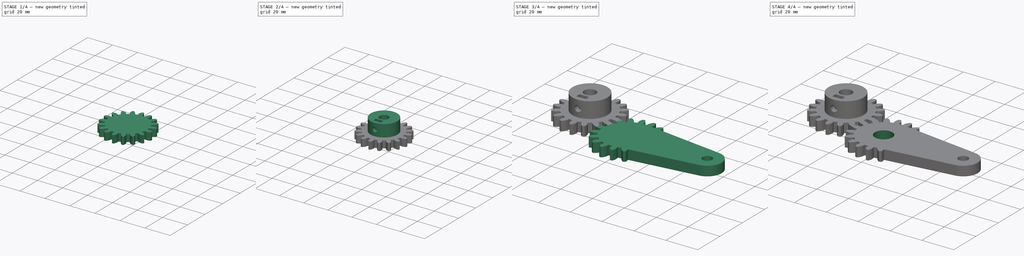
[diagram: build sequence overview — one tinted view per stage of 4, left to right]
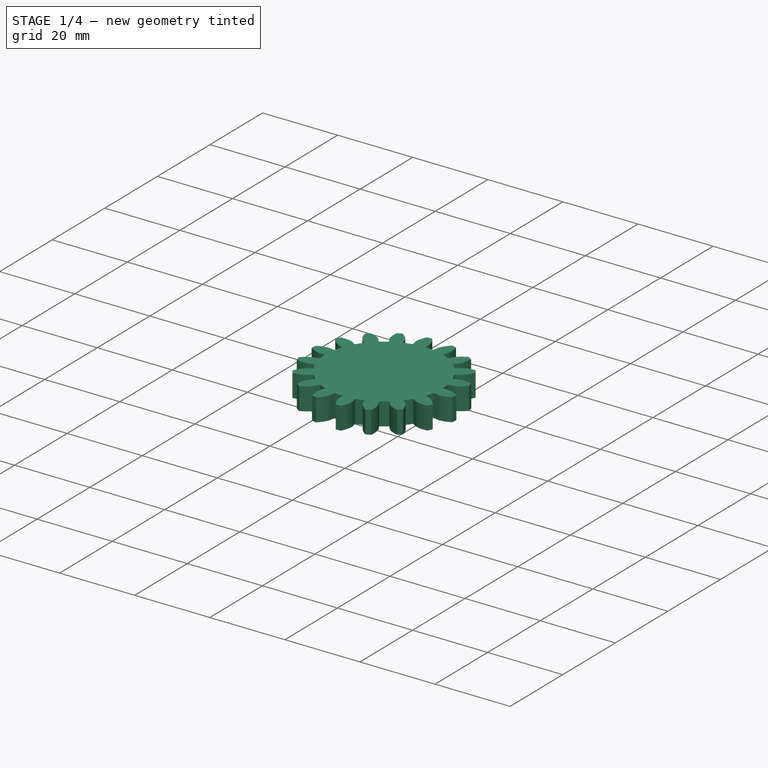
[diagram: stage 1 of 4 — iso view after this stage's code; geometry added in this stage tinted green]
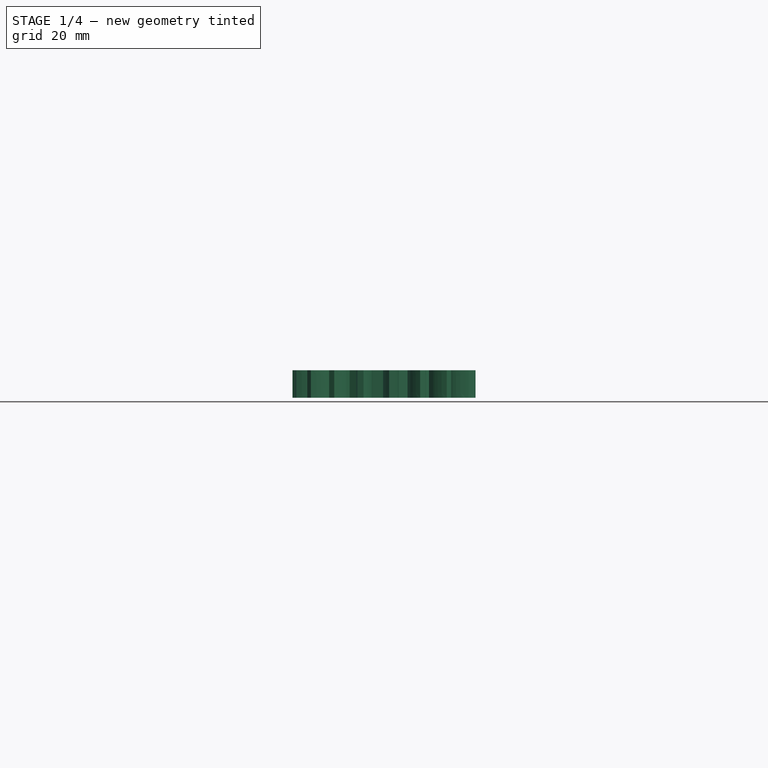
[diagram: stage 1 of 4 — front view after this stage's code; geometry added in this stage tinted green]
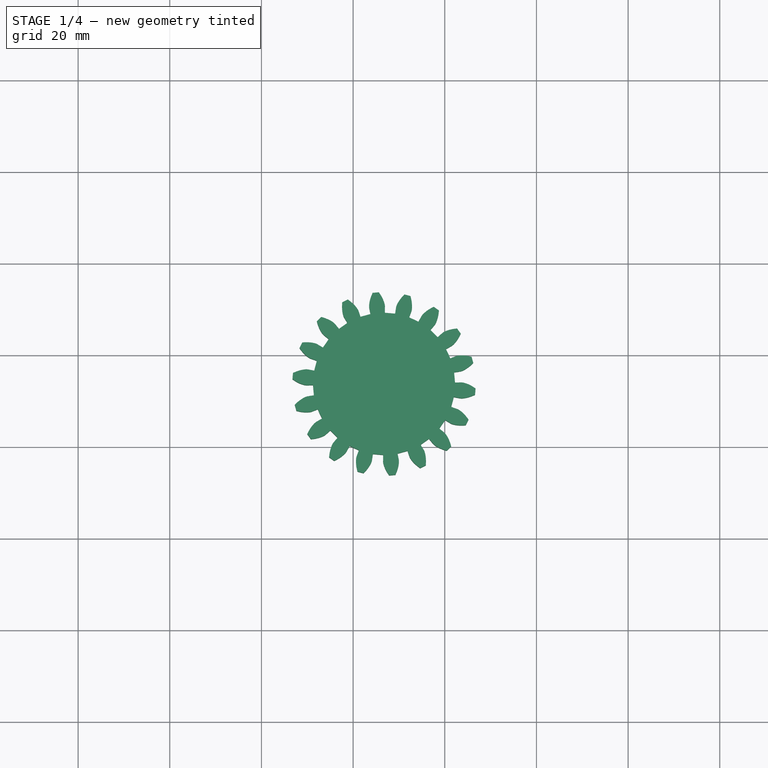
[diagram: stage 1 of 4 — top view after this stage's code; geometry added in this stage tinted green]
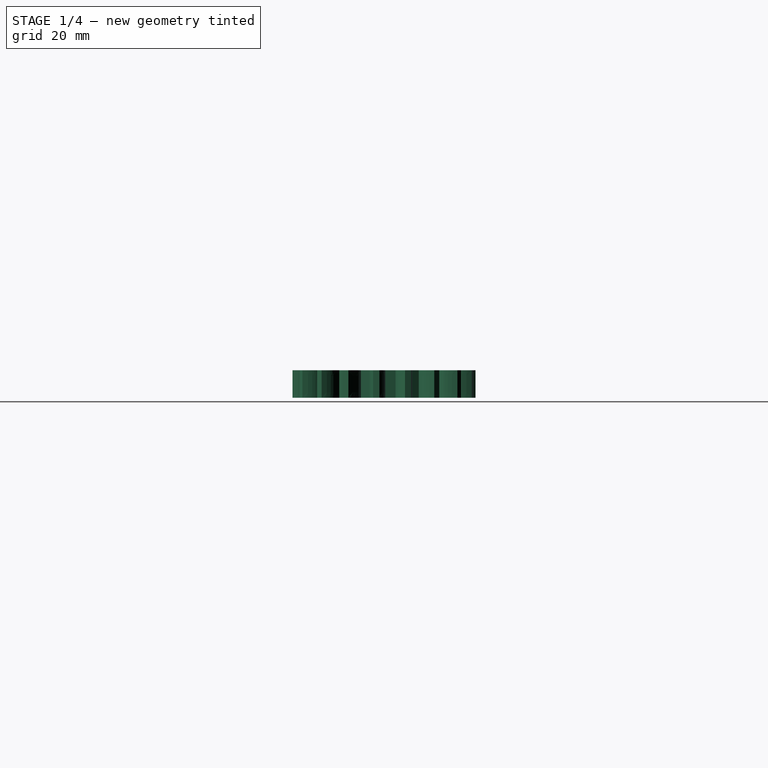
[diagram: stage 1 of 4 — right view after this stage's code; geometry added in this stage tinted green]
FCSTD DOCUMENT  (FreeCAD 2023.131R26244 +5365 (Git))
Label: manovella tergicrcistallo
License: All rights reserved
LicenseURL: http://en.wikipedia.org/wiki/All_rights_reserved
objects: Sketcher::SketchObject×8, PartDesign::Pad×5, PartDesign::Body×4, PartDesign::Chamfer×3, PartDesign::Pocket×3, Part::FeaturePython×1, PartDesign::FeatureBase×1, Part::Feature×1, PartDesign::FeaturePython×1
note: 59 computed .brp shape members not serialized (recipe doc carries the construction recipe); baked Part::Feature solids carry a one-line shape summary decoded from their .brp

FEATURE [PartDesign::Body] Body001  label="manovella"
  AutoGroupSolids = false
  BaseFeature = -> InvoluteGear
  ClaimAllChildren = false
  ExportMode = 0
  FixShape = 1
  Group = -> [BaseFeature,Sketch001,Pad001,Sketch002,Pocket,Chamfer]
  InvalidShape = false
  Origin = -> Origin001
  Tip = -> Chamfer
  TreeRank = 32
  ValidateShape = false
  _ExportChildren = -> [BaseFeature,Pad001,Pocket,Chamfer]
  _GroupVersion = 1
FEATURE [Sketcher::SketchObject] Sketch003
  ArcFitTolerance = 1e-06
  AttachmentOffset = pos=(0,0,-5) rot=(0,0,1;0rad)
  AttachmentSupport = -> [XY_Plane002]
  ExternalBSplineMaxDegree = 5
  ExternalBSplineTolerance = 0.0001
  FixShape = 1
  FullyConstrained = true
  InternalTolerance = 1e-06
  InvalidShape = false
  MakeInternals = false
  MapMode = 5
  Placement = pos=(0,0,-5) rot=(0,0,1;0rad)
  Support = -> [XY_Plane002]
  TreeRank = 50
  ValidateShape = false
  sketch-geometry (10):
    g0: Circle CenterX=0 CenterY=0 CenterZ=0 NormalX=0 NormalY=0 NormalZ=1 AngleXU=0 Radius=11
    g1: ArcOfCircle CenterX=0 CenterY=0 CenterZ=0 NormalX=0 NormalY=0 NormalZ=1 AngleXU=0 Radius=16 StartAngle=4.23626 EndAngle=7.54471
    g2: ArcOfCircle CenterX=-33.2597 CenterY=13.7766 CenterZ=0 NormalX=0 NormalY=0 NormalZ=1 AngleXU=0 Radius=13 StartAngle=1.26153 EndAngle=4.23626
    g3: LineSegment StartX=-7.33348 StartY=-14.2204 StartZ=0 EndX=-39.2181 EndY=2.22252 EndZ=0
    g4: LineSegment StartX=-29.303 StartY=26.1598 StartZ=0 EndX=4.8698 EndY=15.2409 EndZ=0
    g5: ArcOfCircle CenterX=-33.2597 CenterY=13.7766 CenterZ=0 NormalX=0 NormalY=0 NormalZ=1 AngleXU=0 Radius=6 StartAngle=1.83536 EndAngle=3.66243
    g6: LineSegment [constr] StartX=0 StartY=0 StartZ=0 EndX=-33.2597 EndY=13.7766 EndZ=0
    g7: LineSegment StartX=-34.8286 StartY=19.5678 StartZ=0 EndX=-28.0552 EndY=16.7622 EndZ=0
    g8: LineSegment StartX=-38.4641 StartY=10.791 StartZ=0 EndX=-31.6907 EndY=7.98537 EndZ=0
    g9: ArcOfCircle CenterX=-33.2597 CenterY=13.7766 CenterZ=0 NormalX=0 NormalY=0 NormalZ=1 AngleXU=0 Radius=6 StartAngle=4.97695 EndAngle=6.80402
  constraints (25):
    c: Coincident(g0,g-1)
    c: Coincident(g1,g0)
    c: Tangent(g1,g4) = 1.5708
    c: Tangent(g1,g3) = 1.5708
    c: Tangent(g2,g3) = 1.5708
    c: Tangent(g2,g4) = 1.5708
    c: Diameter(g0) = 22
    c: Radius(g1) = 16
    c: Coincident(g5,g2)
    c: Diameter(g5) = 12
    c: Radius(g2) = 13
    c: Distance(g0,g2) = 36
    c: Coincident(g6,g0)
    c: Coincident(g6,g2)
    c: Angle(g6) = 2.74889
    c: Parallel(g7,g8)
    c: Parallel(g8,g6)
    c: Symmetric(g7,g8,g6)
    c: Coincident(g9,g7)
    c: Coincident(g5,g7)
    c: Equal(g5,g9)
    c: Coincident(g5,g8)
    c: PointOnObject(g9,g8)
    c: Coincident(g5,g9)
    c: Distance(g8,g7) = 9.5
FEATURE [PartDesign::Pad] Pad002
  AddSubType = 0
  AlongSketchNormal = false
  AutoTaperInnerAngle = true
  CheckUpToFaceLimits = true
  ClaimChildren = false
  Direction = (0,0,1)
  Fit = 0
  FitJoin = 0
  FixShape = 1
  InnerFit = 0
  InnerFitJoin = 0
  InvalidShape = false
  Length = 3
  Length2 = 100
  Linearize = true
  NewSolid = false
  Profile = -> Sketch003
  Suppress = false
  TaperInnerAngle = 0
  TaperInnerAngleRev = 0
  TreeRank = 51
  Type = 0
  ValidateShape = false
  _ProfileBasedVersion = 1
FEATURE [Sketcher::SketchObject] Sketch004
  ArcFitTolerance = 1e-06
  AttachmentSupport = -> [Pad002]
  ExternalBSplineMaxDegree = 5
  ExternalBSplineTolerance = 0.0001
  ExternalGeometry = -> [Pad002]
  FixShape = 1
  FullyConstrained = true
  InternalTolerance = 1e-06
  InvalidShape = false
  MakeInternals = false
  MapMode = 5
  Placement = pos=(0,0,-5) rot=(1,0,0;3.14159rad)
  Support = -> [Pad002]
  TreeRank = 52
  ValidateShape = false
  sketch-geometry (8):
    g0: ArcOfCircle CenterX=0 CenterY=0 CenterZ=0 NormalX=0 NormalY=0 NormalZ=1 AngleXU=0 Radius=11 StartAngle=0.182835 EndAngle=0.576931
    g1: ArcOfCircle CenterX=0 CenterY=0 CenterZ=0 NormalX=0 NormalY=0 NormalZ=1 AngleXU=0 Radius=16 StartAngle=0.125328 EndAngle=0.384397
    g2: ArcOfCircle CenterX=0 CenterY=0 CenterZ=0 NormalX=0 NormalY=0 NormalZ=1 AngleXU=0 Radius=11 StartAngle=5.70625 EndAngle=6.10035
    g3: ArcOfCircle CenterX=0 CenterY=0 CenterZ=0 NormalX=0 NormalY=0 NormalZ=1 AngleXU=0 Radius=16 StartAngle=5.89879 EndAngle=6.15786
    g4: LineSegment StartX=9.21954 StartY=6 StartZ=0 EndX=14.8324 EndY=6 EndZ=0
    g5: LineSegment StartX=10.8167 StartY=2 StartZ=0 EndX=15.8745 EndY=2 EndZ=0
    g6: LineSegment StartX=10.8167 StartY=-2 StartZ=0 EndX=15.8745 EndY=-2 EndZ=0
    g7: LineSegment StartX=9.21954 StartY=-6 StartZ=0 EndX=14.8324 EndY=-6 EndZ=0
  constraints (24):
    c: PointOnObject(g0,g-3)
    c: PointOnObject(g1,g-4)
    c: PointOnObject(g2,g-3)
    c: PointOnObject(g3,g-4)
    c: Coincident(g4,g0)
    c: Coincident(g4,g1)
    c: Coincident(g5,g0)
    c: Coincident(g5,g1)
    c: Coincident(g6,g2)
    c: Coincident(g6,g3)
    c: Coincident(g7,g2)
    c: Coincident(g7,g3)
    c: Vertical(g1,g3)
    c: Horizontal(g5)
    c: Horizontal(g4)
    c: Horizontal(g6)
    c: Horizontal(g7)
    c: Vertical(g3,g1)
    c: DistanceY(g1) = 6
    c: DistanceY(g1) = 2
    c: Coincident(g1,g0)
    c: Coincident(g0,g-4)
    c: Coincident(g3,g0)
    c: Coincident(g2,g0)
FEATURE [PartDesign::Pad] Pad003
  AddSubType = 0
  AlongSketchNormal = false
  AutoTaperInnerAngle = true
  BaseFeature = -> Pad002
  CheckUpToFaceLimits = true
  ClaimChildren = false
  Direction = (0,0,-1)
  Fit = 0
  FitJoin = 0
  FixShape = 1
  InnerFit = 0
  InnerFitJoin = 0
  InvalidShape = false
  Length = 4
  Length2 = 100
  Linearize = true
  NewSolid = false
  Profile = -> Sketch004
  Suppress = false
  TaperInnerAngle = 0
  TaperInnerAngleRev = 0
  TreeRank = 53
  Type = 0
  ValidateShape = false
  _ProfileBasedVersion = 1
FEATURE [PartDesign::Chamfer] Chamfer002
  AddSubType = 0
  Angle = 45
  Base = -> Pad003 [Edge39,Edge31]
  BaseFeature = -> Pad003
  ChamferType = 0
  FixShape = 1
  FlipDirection = false
  InvalidShape = false
  NewSolid = false
  Size = 2
  Size2 = 1
  SupportTransform = false
  Suppress = false
  TreeRank = 54
  ValidateShape = false
FEATURE [PartDesign::Body] Body002  label="collare"
  AutoGroupSolids = false
  ClaimAllChildren = false
  ExportMode = 0
  FixShape = 1
  Group = -> [Sketch003,Pad002,Sketch004,Pad003,Chamfer002]
  InvalidShape = false
  Origin = -> Origin002
  Placement = pos=(0,0,-4.75) rot=(0,0,1;0rad)
  Tip = -> Chamfer002
  TreeRank = 49
  ValidateShape = false
  _ExportChildren = -> [Pad002,Pad003,Chamfer002]
  _GroupVersion = 1
FEATURE [Part::Feature] Part__Feature  label="POT10K v2"
  FixShape = 1
  InvalidShape = false
  Placement = pos=(-30.5,12.5,-19.5) rot=(0,0,1;0rad)
  TreeRank = 55
  ValidateShape = false
  shape: bbox 25.88 x 17.76 x 24.21 mm, 189 faces (baked)
FEATURE [PartDesign::FeaturePython] InvoluteGear001  # WARN: FeaturePython — macro-defined, semantics opaque (R4)
  AttacherType = Attacher::AttachEngine3D
  AttachmentOffset = pos=(0,0,2) rot=(0,0,1;0rad)
  AttachmentSupport = -> [Chamfer002]
  FixShape = 1
  InvalidShape = false
  MapMode = 11
  NewSolid = false
  Placement = pos=(-33.2597,13.7766,0) rot=(0,0,1;3.40616rad)
  Support = -> [Chamfer002]
  Suppress = false
  TreeRank = 68
  ValidateShape = false
  angular_backlash = 0
  backlash = 0
  beta = 0
  clearance = 0.25
  da = 40
  df = 31
  double_helix = false
  dw = 36
  head = 0
  head_fillet = 0
  height = 6
  module = 2
  numpoints = 6
  pressure_angle = 20
  properties_from_tool = false
  reversed_backlash = false
  root_fillet = 0
  shift = 0
  simple = false
  teeth = 18
  transverse_pitch = 6.28319
  traverse_module = 2
  undercut = false
  version = 0.0.4
  expr: angular_backlash = backlash / dw * 360° / pi
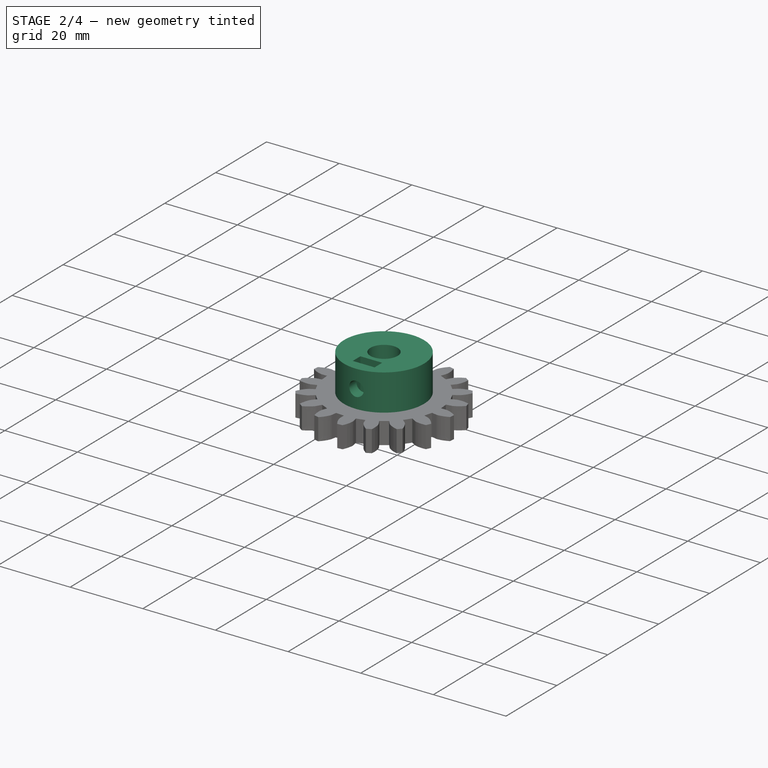
[diagram: stage 2 of 4 — iso view after this stage's code; geometry added in this stage tinted green]
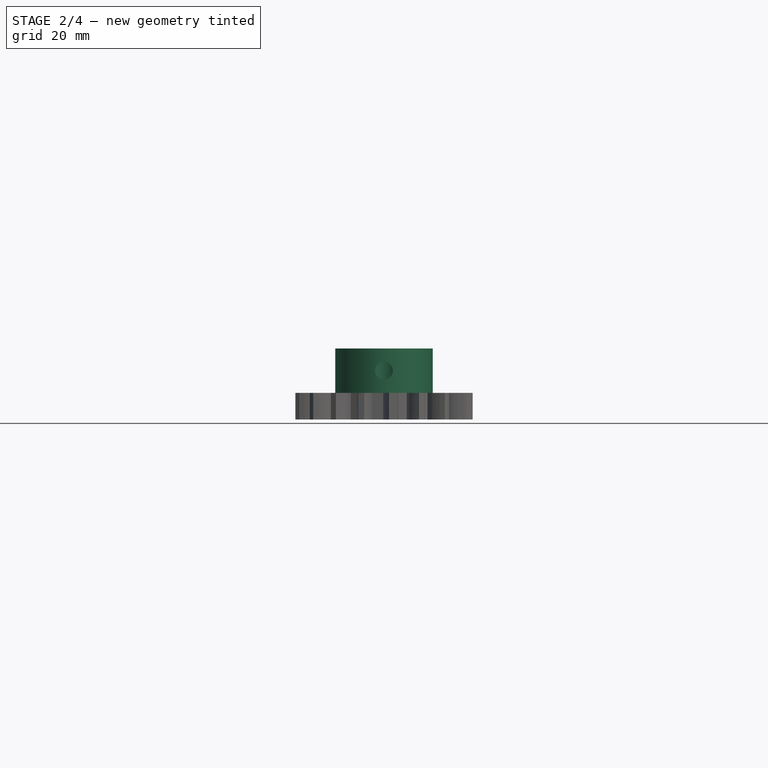
[diagram: stage 2 of 4 — front view after this stage's code; geometry added in this stage tinted green]
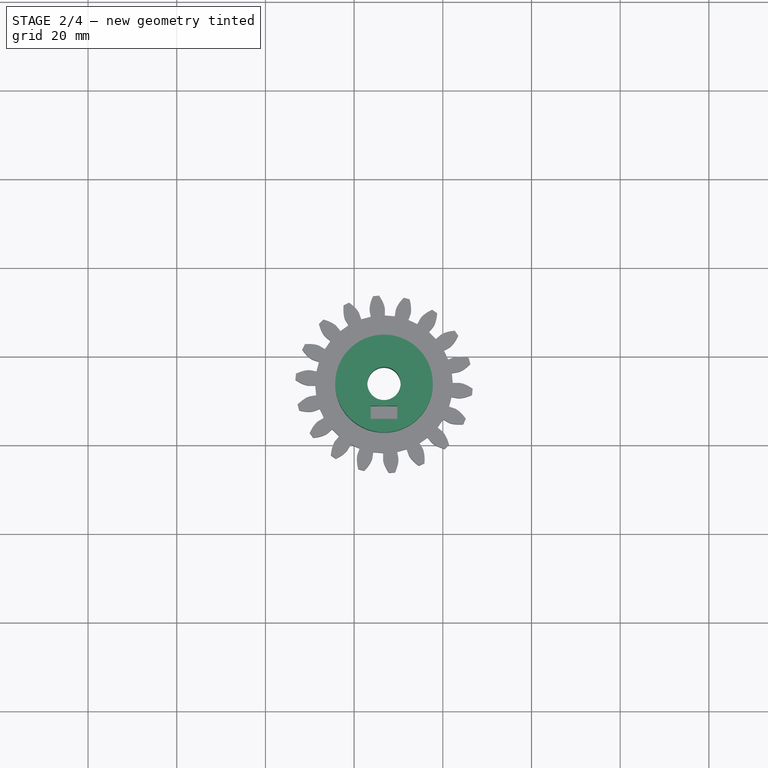
[diagram: stage 2 of 4 — top view after this stage's code; geometry added in this stage tinted green]
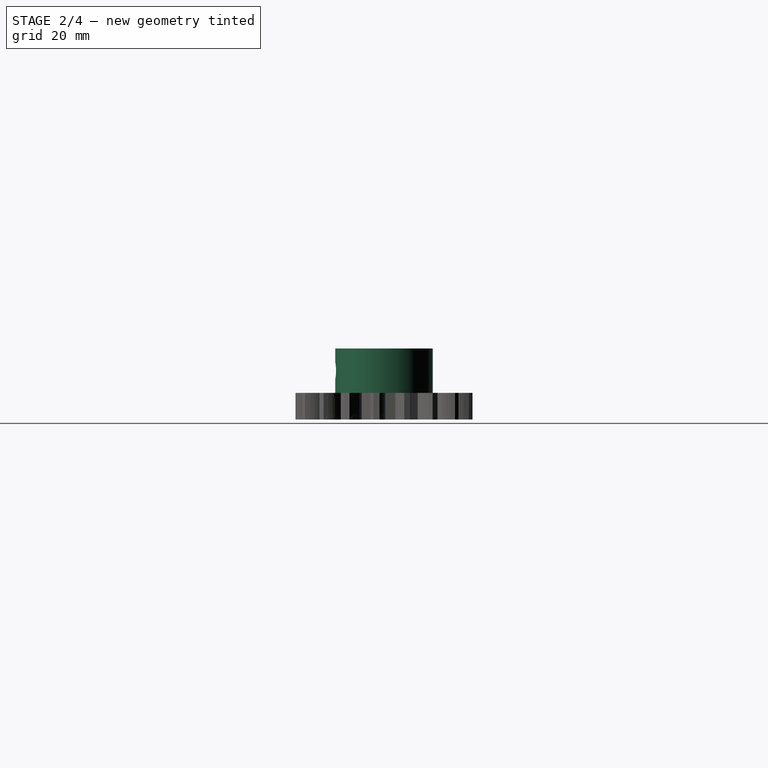
[diagram: stage 2 of 4 — right view after this stage's code; geometry added in this stage tinted green]
FEATURE [Sketcher::SketchObject] Sketch005
  ArcFitTolerance = 1e-06
  AttachmentSupport = -> [InvoluteGear001]
  ExternalBSplineMaxDegree = 5
  ExternalBSplineTolerance = 0.0001
  FixShape = 1
  FullyConstrained = true
  InternalTolerance = 1e-06
  InvalidShape = false
  MakeInternals = false
  MapMode = 5
  Placement = pos=(-33.2597,13.7766,0) rot=(-0.131897,0.991263,0;3.14159rad)
  Support = -> [InvoluteGear001]
  TreeRank = 69
  ValidateShape = false
  sketch-geometry (1):
    g0: Circle CenterX=0 CenterY=0 CenterZ=0 NormalX=0 NormalY=0 NormalZ=1 AngleXU=0 Radius=3.75
  constraints (2):
    c: Coincident(g0,g-1)
    c: Diameter(g0) = 7.5
FEATURE [PartDesign::Pocket] Pocket001
  AddSubType = 1
  AutoTaperInnerAngle = true
  BaseFeature = -> InvoluteGear001
  CheckUpToFaceLimits = true
  ClaimChildren = false
  Fit = 0
  FitJoin = 0
  FixShape = 1
  InnerFit = 0
  InnerFitJoin = 0
  InvalidShape = false
  Length = 5
  Length2 = 100
  Linearize = true
  NewSolid = false
  Profile = -> Sketch005
  Suppress = false
  TaperInnerAngle = 0
  TaperInnerAngleRev = 0
  TreeRank = 70
  Type = 1
  ValidateShape = false
  _ProfileBasedVersion = 1
  _Version = 1
FEATURE [Sketcher::SketchObject] Sketch006
  ArcFitTolerance = 1e-06
  AttachmentSupport = -> [Pocket001]
  ExternalBSplineMaxDegree = 5
  ExternalBSplineTolerance = 0.0001
  ExternalGeometry = -> [Pocket001]
  FixShape = 1
  FullyConstrained = true
  InternalTolerance = 1e-06
  InvalidShape = false
  MakeInternals = false
  MapMode = 5
  Placement = pos=(0,0,6) rot=(0,0,1;0rad)
  Support = -> [Pocket001]
  TreeRank = 71
  ValidateShape = false
  sketch-geometry (7):
    g0: Circle CenterX=-33.2597 CenterY=13.7766 CenterZ=0 NormalX=0 NormalY=0 NormalZ=1 AngleXU=0 Radius=11
    g1: Circle CenterX=-33.2597 CenterY=13.7766 CenterZ=0 NormalX=0 NormalY=0 NormalZ=1 AngleXU=0 Radius=3.75
    g2: LineSegment StartX=-36.2597 StartY=8.7766 StartZ=0 EndX=-30.2597 EndY=8.7766 EndZ=0
    g3: LineSegment StartX=-30.2597 StartY=8.7766 StartZ=0 EndX=-30.2597 EndY=5.7766 EndZ=0
    g4: LineSegment StartX=-30.2597 StartY=5.7766 StartZ=0 EndX=-36.2597 EndY=5.7766 EndZ=0
    g5: LineSegment StartX=-36.2597 StartY=5.7766 StartZ=0 EndX=-36.2597 EndY=8.7766 EndZ=0
    g6: LineSegment [constr] StartX=-33.2597 StartY=13.7766 StartZ=0 EndX=-33.2597 EndY=8.7766 EndZ=0
  constraints (18):
    c: Coincident(g1,g0)
    c: Diameter(g0) = 22
    c: Equal(g1,g-3)
    c: Coincident(g0,g-3)
    c: Coincident(g2,g3)
    c: Coincident(g3,g4)
    c: Coincident(g4,g5)
    c: Coincident(g5,g2)
    c: Horizontal(g2)
    c: Horizontal(g4)
    c: Vertical(g3)
    c: Vertical(g5)
    c: DistanceY(g5,g5) = 3
    c: DistanceX(g4,g4) = 6
    c: Coincident(g6,g0)
    c: PointOnObject(g6,g2)
    c: Symmetric(g2,g2,g6)
    c: DistanceY(g6,g6) = 5
FEATURE [PartDesign::Pad] Pad004
  AddSubType = 0
  AlongSketchNormal = false
  AutoTaperInnerAngle = true
  BaseFeature = -> Pocket001
  CheckUpToFaceLimits = true
  ClaimChildren = false
  Direction = (0,0,1)
  Fit = 0
  FitJoin = 0
  FixShape = 1
  InnerFit = 0
  InnerFitJoin = 0
  InvalidShape = false
  Length = 10
  Length2 = 100
  Linearize = true
  NewSolid = false
  Profile = -> Sketch006
  Suppress = false
  TaperInnerAngle = 0
  TaperInnerAngleRev = 0
  TreeRank = 72
  Type = 0
  ValidateShape = false
  _ProfileBasedVersion = 1
FEATURE [Sketcher::SketchObject] Sketch007
  ArcFitTolerance = 1e-06
  AttachmentSupport = -> [Pad004]
  ExternalBSplineMaxDegree = 5
  ExternalBSplineTolerance = 0.0001
  ExternalGeometry = -> [Pad004]
  FixShape = 1
  FullyConstrained = true
  InternalTolerance = 1e-06
  InvalidShape = false
  MakeInternals = false
  MapMode = 5
  Placement = pos=(0,8.7766,0) rot=(1,0,0;1.5708rad)
  Support = -> [Pad004]
  TreeRank = 73
  ValidateShape = false
  sketch-geometry (1):
    g0: Circle CenterX=-33.2597 CenterY=11 CenterZ=0 NormalX=0 NormalY=0 NormalZ=1 AngleXU=0 Radius=2
  constraints (2):
    c: Diameter(g0) = 4
    c: Symmetric(g-3,g-4,g0)
FEATURE [PartDesign::Pocket] Pocket002
  AddSubType = 1
  AutoTaperInnerAngle = true
  BaseFeature = -> Pad004
  CheckUpToFaceLimits = true
  ClaimChildren = false
  Fit = 0
  FitJoin = 0
  FixShape = 1
  InnerFit = 0
  InnerFitJoin = 0
  InvalidShape = false
  Length = 12
  Length2 = 100
  Linearize = true
  Midplane = true
  NewSolid = false
  Profile = -> Sketch007
  Suppress = false
  TaperInnerAngle = 0
  TaperInnerAngleRev = 0
  TreeRank = 74
  Type = 0
  ValidateShape = false
  _ProfileBasedVersion = 1
  _Version = 1
FEATURE [PartDesign::Body] Body003  label="ingranaggio"
  AutoGroupSolids = false
  ClaimAllChildren = false
  ExportMode = 0
  FixShape = 1
  Group = -> [InvoluteGear001,Sketch005,Pocket001,Sketch006,Pad004,Sketch007,Pocket002]
  InvalidShape = false
  Origin = -> Origin003
  Placement = pos=(-3.42071,-6.23831,-1.8e-15) rot=(0,0,1;6.07375rad)
  Tip = -> Pocket002
  TreeRank = 67
  ValidateShape = false
  _ExportChildren = -> [InvoluteGear001,Pocket001,Pad004,Pocket002]
  _GroupVersion = 1
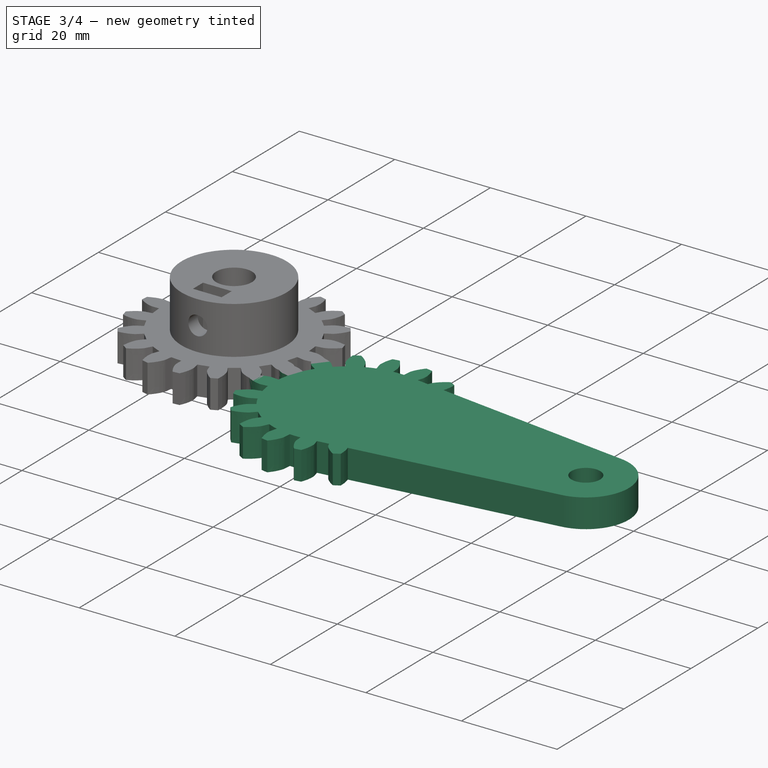
[diagram: stage 3 of 4 — iso view after this stage's code; geometry added in this stage tinted green]
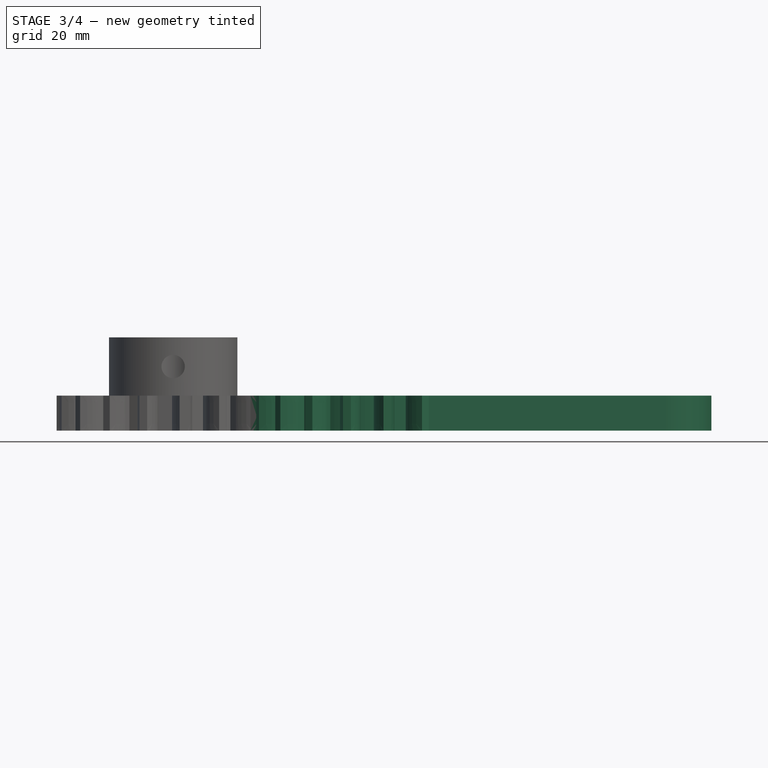
[diagram: stage 3 of 4 — front view after this stage's code; geometry added in this stage tinted green]
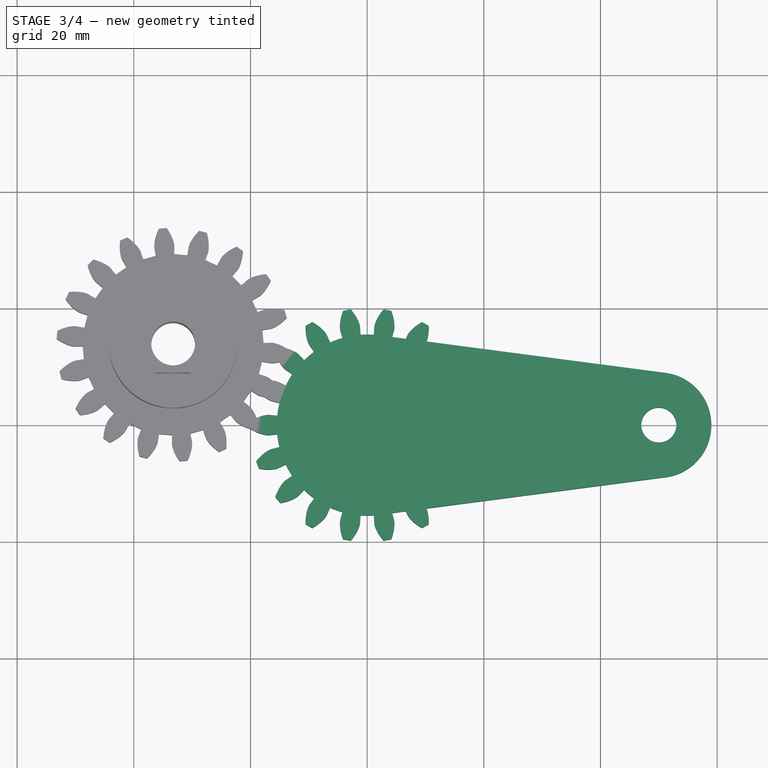
[diagram: stage 3 of 4 — top view after this stage's code; geometry added in this stage tinted green]
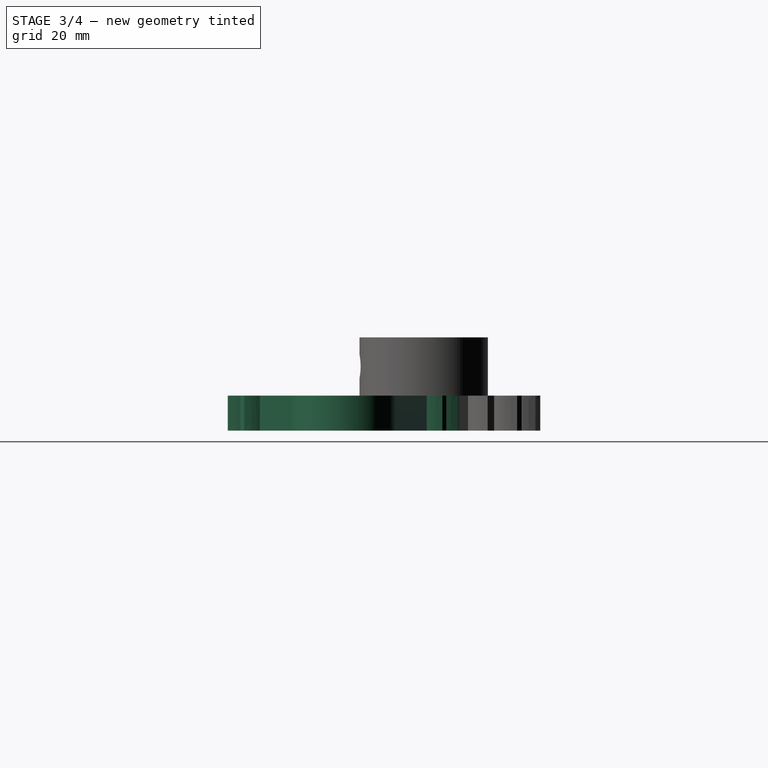
[diagram: stage 3 of 4 — right view after this stage's code; geometry added in this stage tinted green]
FEATURE [PartDesign::Body] Body
  AutoGroupSolids = false
  ClaimAllChildren = false
  ExportMode = 0
  FixShape = 1
  Group = -> [Sketch,Pad,Chamfer001]
  InvalidShape = false
  Origin = -> Origin
  Tip = -> Chamfer001
  TreeRank = 13
  ValidateShape = false
  _ExportChildren = -> [Pad,Chamfer001]
  _GroupVersion = 1
FEATURE [Part::FeaturePython] InvoluteGear  # WARN: FeaturePython — macro-defined, semantics opaque (R4)
  AttacherType = Attacher::AttachEngine3D
  FixShape = 1
  InvalidShape = false
  TreeRank = 14
  ValidateShape = false
  angular_backlash = 0
  backlash = 0
  beta = 0
  clearance = 0.25
  da = 40
  df = 31
  double_helix = true
  dw = 36
  head = 0
  head_fillet = 0
  height = 6
  module = 2
  numpoints = 6
  pressure_angle = 20
  properties_from_tool = false
  reversed_backlash = false
  root_fillet = 0
  shift = 0
  simple = false
  teeth = 18
  transverse_pitch = 6.28319
  traverse_module = 2
  undercut = false
  version = 0.0.4
  expr: angular_backlash = backlash / dw * 360° / pi
FEATURE [PartDesign::FeatureBase] BaseFeature
  BaseFeature = -> InvoluteGear
  FixShape = 1
  InvalidShape = false
  NewSolid = false
  Suppress = false
  TreeRank = 29
  ValidateShape = false
FEATURE [Sketcher::SketchObject] Sketch001
  ArcFitTolerance = 1e-06
  AttachmentSupport = -> [BaseFeature]
  ExternalBSplineMaxDegree = 5
  ExternalBSplineTolerance = 0.0001
  ExternalGeometry = -> [BaseFeature]
  FixShape = 1
  FullyConstrained = true
  InternalTolerance = 1e-06
  InvalidShape = false
  MakeInternals = false
  MapMode = 5
  Placement = pos=(0,0,6) rot=(0,0,1;0rad)
  Support = -> [BaseFeature]
  TreeRank = 33
  ValidateShape = false
  sketch-geometry (5):
    g0: ArcOfCircle CenterX=0 CenterY=0 CenterZ=0 NormalX=0 NormalY=0 NormalZ=1 AngleXU=0 Radius=15.5 StartAngle=1.44043 EndAngle=4.84276
    g1: LineSegment StartX=2.015 StartY=15.3685 StartZ=0 EndX=51.17 EndY=8.92363 EndZ=0
    g2: LineSegment StartX=2.015 StartY=-15.3685 StartZ=0 EndX=51.17 EndY=-8.92363 EndZ=0
    g3: ArcOfCircle CenterX=50 CenterY=0 CenterZ=0 NormalX=0 NormalY=0 NormalZ=1 AngleXU=0 Radius=9 StartAngle=4.84276 EndAngle=7.72361
    g4: Circle CenterX=50 CenterY=0 CenterZ=0 NormalX=0 NormalY=0 NormalZ=1 AngleXU=0 Radius=3
  constraints (11):
    c: Coincident(g0,g-1)
    c: PointOnObject(g-3,g0)
    c: PointOnObject(g3,g-1)
    c: Tangent(g0,g2) = -1.5708
    c: Tangent(g3,g1) = 1.5708
    c: Tangent(g3,g2) = -1.5708
    c: Tangent(g0,g1) = 1.5708
    c: Coincident(g4,g3)
    c: Diameter(g4) = 6
    c: Radius(g3) = 9
    c: DistanceX(g3) = 50
FEATURE [PartDesign::Pad] Pad001
  AddSubType = 0
  AlongSketchNormal = false
  AutoTaperInnerAngle = true
  BaseFeature = -> BaseFeature
  CheckUpToFaceLimits = true
  ClaimChildren = false
  Direction = (0,0,1)
  Fit = 0
  FitJoin = 0
  FixShape = 1
  InnerFit = 0
  InnerFitJoin = 0
  InvalidShape = false
  Length = 10
  Length2 = 100
  Linearize = true
  NewSolid = false
  Profile = -> Sketch001
  Refine = true
  Reversed = true
  Suppress = false
  TaperInnerAngle = 0
  TaperInnerAngleRev = 0
  TreeRank = 34
  Type = 2
  ValidateShape = false
  _ProfileBasedVersion = 1
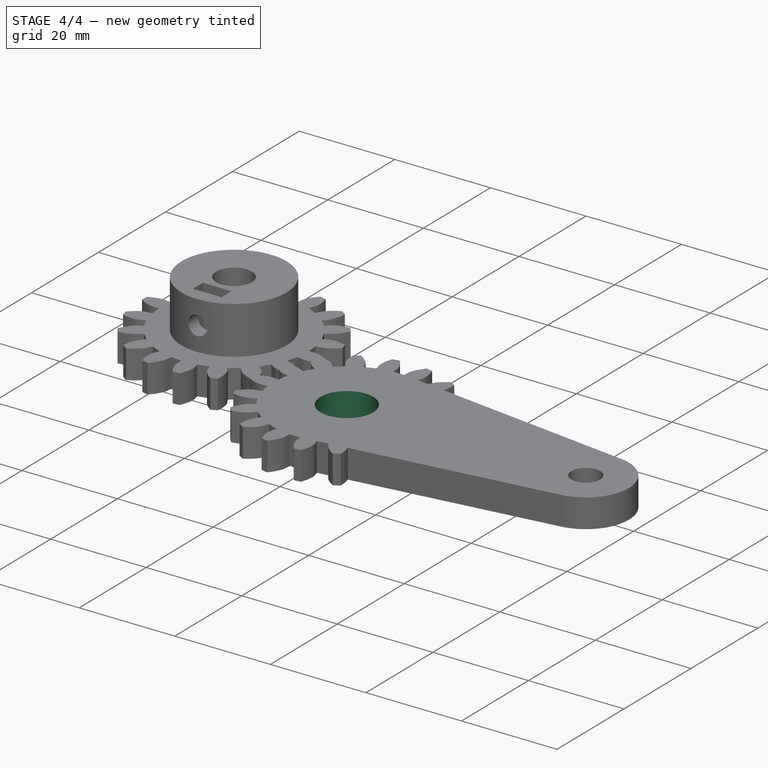
[diagram: stage 4 of 4 — iso view after this stage's code; geometry added in this stage tinted green]
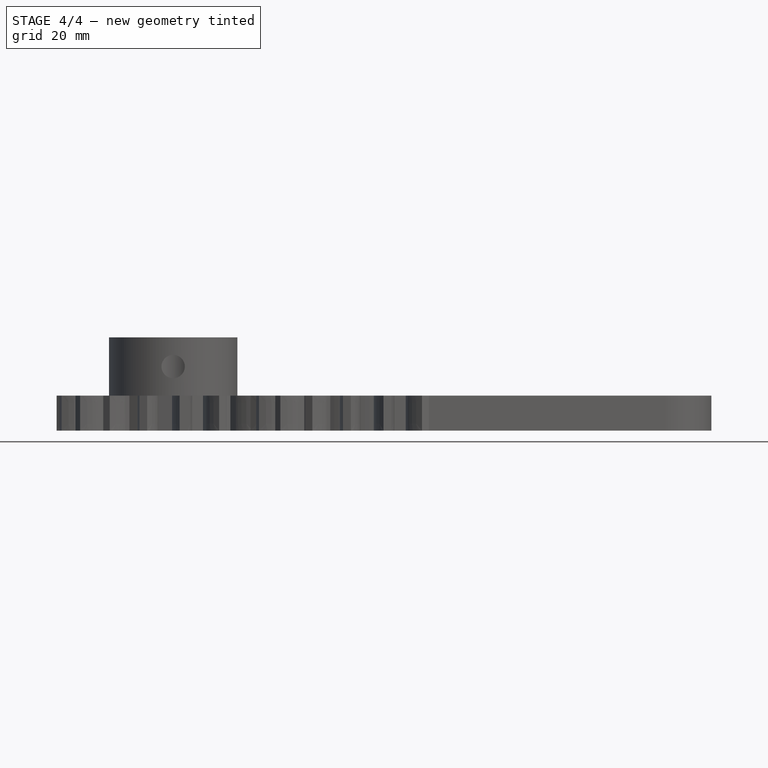
[diagram: stage 4 of 4 — front view after this stage's code; geometry added in this stage tinted green]
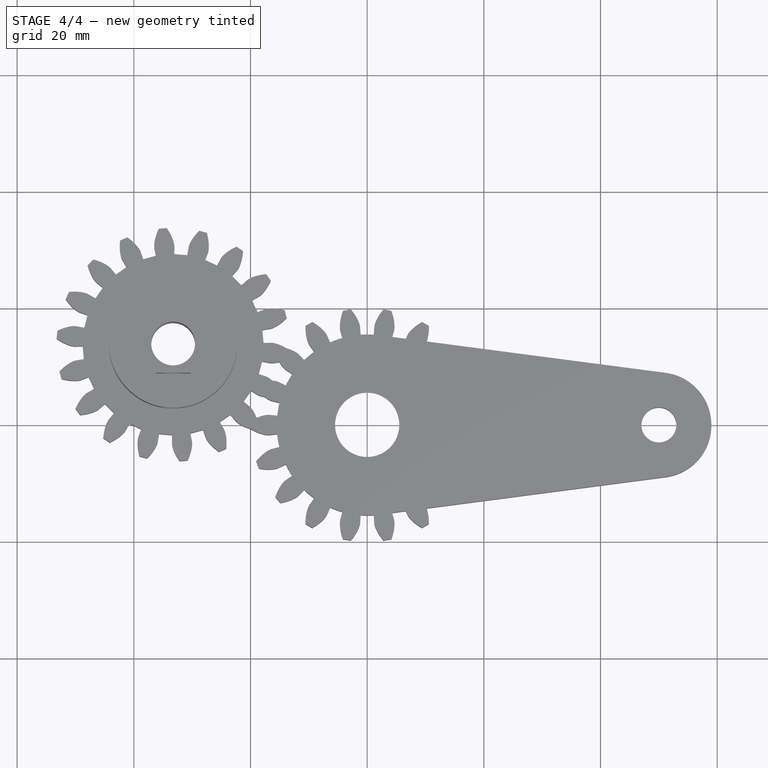
[diagram: stage 4 of 4 — top view after this stage's code; geometry added in this stage tinted green]
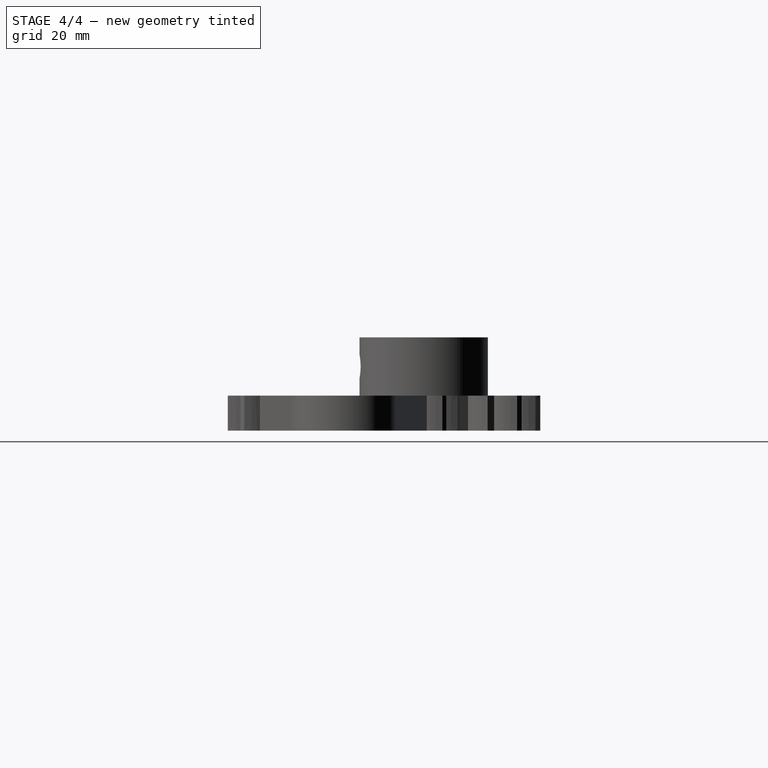
[diagram: stage 4 of 4 — right view after this stage's code; geometry added in this stage tinted green]
FEATURE [Sketcher::SketchObject] Sketch
  ArcFitTolerance = 1e-06
  AttachmentSupport = -> [XY_Plane]
  ExternalBSplineMaxDegree = 5
  ExternalBSplineTolerance = 0.0001
  FixShape = 1
  FullyConstrained = true
  InternalTolerance = 1e-06
  InvalidShape = false
  MakeInternals = false
  MapMode = 5
  Support = -> [XY_Plane]
  TreeRank = 16
  ValidateShape = false
  sketch-geometry (6):
    g0: ArcOfCircle CenterX=0 CenterY=0 CenterZ=0 NormalX=0 NormalY=0 NormalZ=1 AngleXU=0 Radius=15 StartAngle=1.42745 EndAngle=4.85574
    g1: ArcOfCircle CenterX=35 CenterY=0 CenterZ=0 NormalX=0 NormalY=0 NormalZ=1 AngleXU=0 Radius=10 StartAngle=4.85574 EndAngle=7.71063
    g2: Circle CenterX=0 CenterY=0 CenterZ=0 NormalX=0 NormalY=0 NormalZ=1 AngleXU=0 Radius=5.5
    g3: Circle CenterX=35 CenterY=0 CenterZ=0 NormalX=0 NormalY=0 NormalZ=1 AngleXU=0 Radius=3.5
    g4: LineSegment StartX=2.14286 StartY=14.8461 StartZ=0 EndX=36.4286 EndY=9.89743 EndZ=0
    g5: LineSegment StartX=36.4286 StartY=-9.89743 StartZ=0 EndX=2.14286 EndY=-14.8461 EndZ=0
  constraints (13):
    c: Coincident(g0,g-1)
    c: PointOnObject(g1,g-1)
    c: Coincident(g2,g0)
    c: Coincident(g3,g1)
    c: Tangent(g0,g4) = 1.5708
    c: Tangent(g1,g4) = 1.5708
    c: Tangent(g1,g5) = 1.5708
    c: Diameter(g2) = 11
    c: DistanceX(g1) = 35
    c: Radius(g0) = 15
    c: Diameter(g3) = 7
    c: Radius(g1) = 10
    c: Tangent(g0,g5) = 1.5708
FEATURE [PartDesign::Pad] Pad
  AddSubType = 0
  AlongSketchNormal = false
  AutoTaperInnerAngle = true
  CheckUpToFaceLimits = true
  ClaimChildren = false
  Direction = (0,0,1)
  Fit = 0
  FitJoin = 0
  FixShape = 1
  InnerFit = 0
  InnerFitJoin = 0
  InvalidShape = false
  Length = 6
  Length2 = 100
  Linearize = true
  NewSolid = false
  Profile = -> Sketch
  Suppress = false
  TaperInnerAngle = 0
  TaperInnerAngleRev = 0
  TreeRank = 17
  Type = 0
  ValidateShape = false
  _ProfileBasedVersion = 1
FEATURE [PartDesign::Chamfer] Chamfer001
  AddSubType = 0
  Angle = 45
  Base = -> Pad [Edge14]
  BaseFeature = -> Pad
  ChamferType = 1
  FixShape = 1
  FlipDirection = false
  InvalidShape = false
  NewSolid = false
  Size = 5.99
  Size2 = 1
  SupportTransform = false
  Suppress = false
  TreeRank = 19
  ValidateShape = false
FEATURE [Sketcher::SketchObject] Sketch002
  ArcFitTolerance = 1e-06
  AttachmentSupport = -> [Pad001]
  ExternalBSplineMaxDegree = 5
  ExternalBSplineTolerance = 0.0001
  FixShape = 1
  FullyConstrained = true
  InternalTolerance = 1e-06
  InvalidShape = false
  MakeInternals = false
  MapMode = 5
  Placement = pos=(0,0,6) rot=(0,0,1;0rad)
  Support = -> [Pad001]
  TreeRank = 35
  ValidateShape = false
  sketch-geometry (1):
    g0: Circle CenterX=0 CenterY=0 CenterZ=0 NormalX=0 NormalY=0 NormalZ=1 AngleXU=0 Radius=5.5
  constraints (2):
    c: Coincident(g0,g-1)
    c: Diameter(g0) = 11
FEATURE [PartDesign::Pocket] Pocket
  AddSubType = 1
  AutoTaperInnerAngle = true
  BaseFeature = -> Pad001
  CheckUpToFaceLimits = true
  ClaimChildren = false
  Fit = 0
  FitJoin = 0
  FixShape = 1
  InnerFit = 0
  InnerFitJoin = 0
  InvalidShape = false
  Length = 5
  Length2 = 100
  Linearize = true
  NewSolid = false
  Profile = -> Sketch002
  Suppress = false
  TaperInnerAngle = 0
  TaperInnerAngleRev = 0
  TreeRank = 36
  Type = 2
  ValidateShape = false
  _ProfileBasedVersion = 1
  _Version = 1
FEATURE [PartDesign::Chamfer] Chamfer
  AddSubType = 0
  Angle = 45
  Base = -> Pocket [Edge163]
  BaseFeature = -> Pocket
  ChamferType = 1
  FixShape = 1
  FlipDirection = false
  InvalidShape = false
  NewSolid = false
  Size = 1
  Size2 = 5.99
  SupportTransform = false
  Suppress = false
  TreeRank = 37
  ValidateShape = false
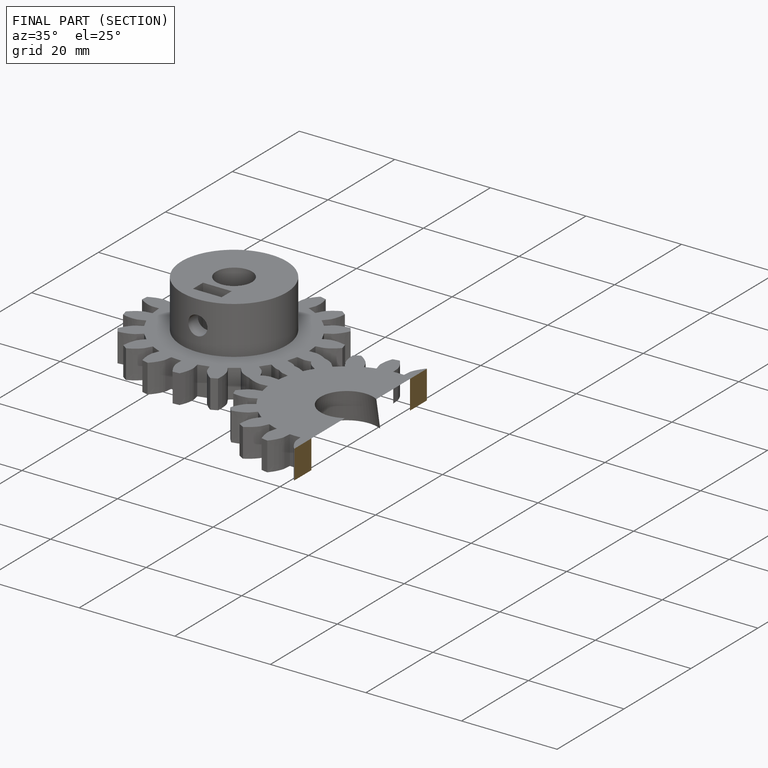
[diagram: finished part — half-section view (interior)]
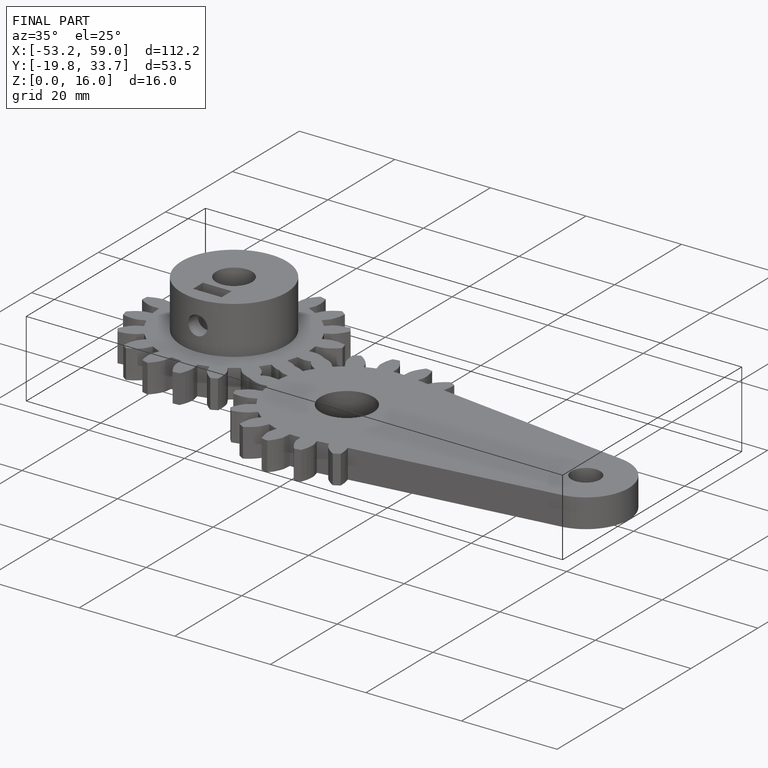
[diagram: finished part — iso view with bounding-box wireframe]
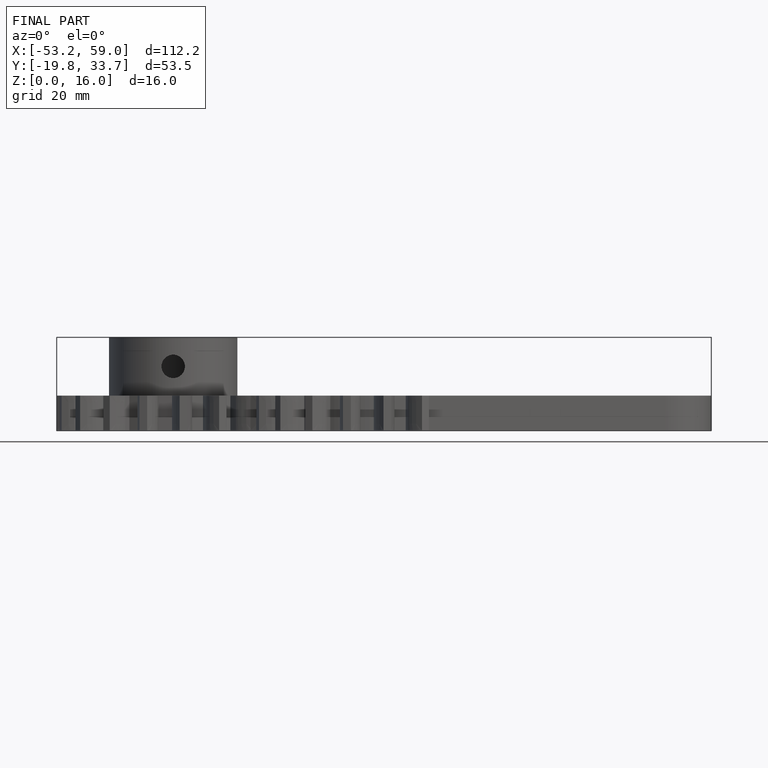
[diagram: finished part — front view with bounding-box wireframe]
